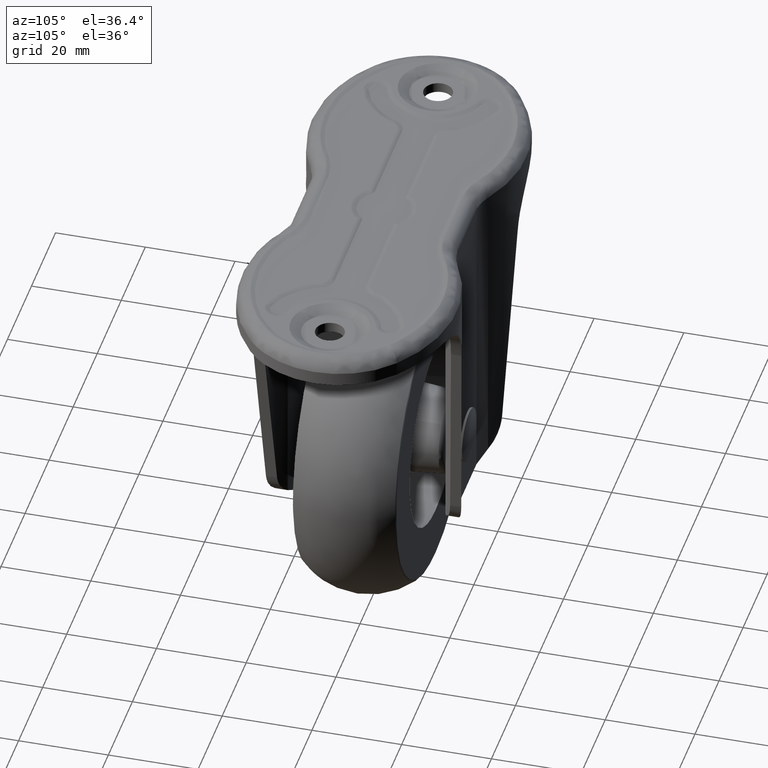
[diagram: clean part render]
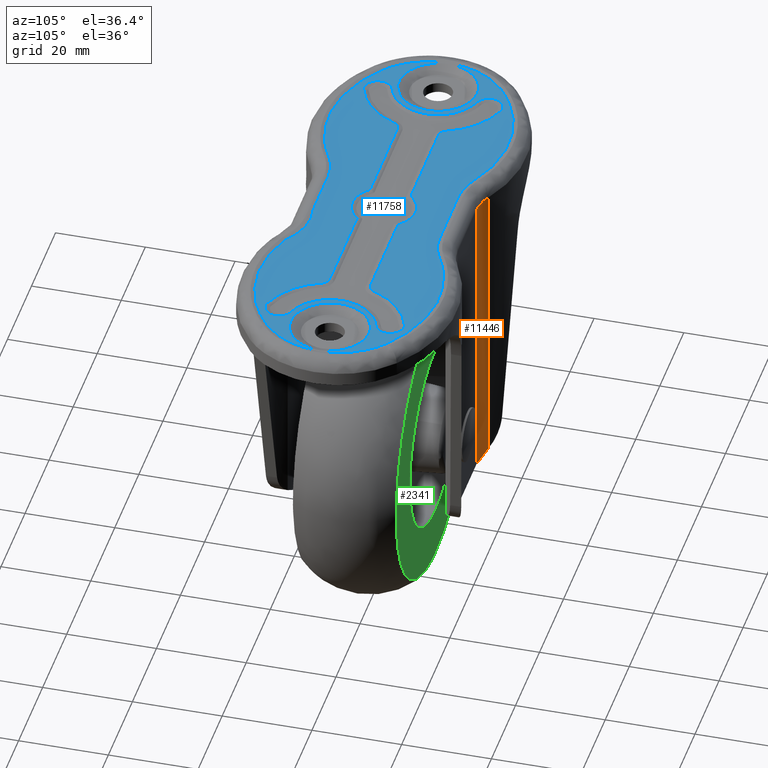
[diagram: same view with three faces highlighted in distinct colors, each labeled with its STEP entity id]
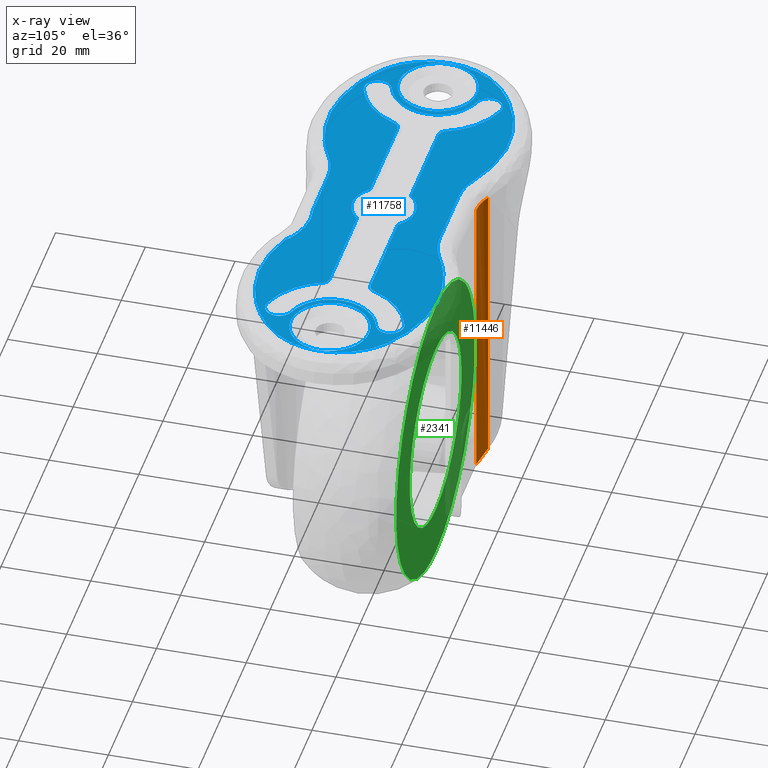
[diagram: x-ray of the same camera — body ghosted, the three highlighted faces saturated]
A machine part, auxiliary view with three faces highlighted in distinct colors.
The next image is the same camera in x-ray (body ghosted, the three faces saturated) — at least one of them is partly hidden behind the body in this view.
Their STEP definitions:

[orange] entity #11446 — the highlighted face is a freeform B-spline surface patch.
#4761=CARTESIAN_POINT('',(-12.713297699008381,19.766056510842500,-3.0));
#4762=VERTEX_POINT('',#4761);
#4895=CARTESIAN_POINT('',(-7.843161000000090,18.500000000000000,-3.0));
#4896=VERTEX_POINT('',#4895);
#4910=CARTESIAN_POINT('',(-12.713297699008381,19.766056510842500,-3.0));
#4911=CARTESIAN_POINT('',(-10.442793425187485,18.500000000000004,-3.000000000000000));
#4912=CARTESIAN_POINT('',(-7.843161000000100,18.500000000000000,-3.0));
#4920=(BOUNDED_CURVE()B_SPLINE_CURVE(2,(#4910,#4911,#4912),.UNSPECIFIED.,.F.,.U.)CURVE()GEOMETRIC_REPRESENTATION_ITEM()QUASI_UNIFORM_CURVE()RATIONAL_B_SPLINE_CURVE((1.0,0.967831170048814,1.0))REPRESENTATION_ITEM(''));
#4921=EDGE_CURVE('',#4762,#4896,#4920,.T.);
#9979=CARTESIAN_POINT('',(-12.713297699008381,19.766056510842500,-70.109765898351696));
#9980=VERTEX_POINT('',#9979);
#9981=CARTESIAN_POINT('',(-9.045706000000001,18.572569037108551,-71.0));
#9982=VERTEX_POINT('',#9981);
#9983=CARTESIAN_POINT('',(-12.713297699008381,19.766056510842500,-70.109765898351696));
#9984=CARTESIAN_POINT('',(-12.445518581591321,19.616740140846769,-70.247900469791873));
#9985=CARTESIAN_POINT('',(-12.168256211024110,19.478235421953549,-70.371847800666657));
#9986=CARTESIAN_POINT('',(-11.593465459385380,19.224553857197410,-70.589689160543543));
#9987=CARTESIAN_POINT('',(-11.295948344607339,19.109363912130348,-70.683599741285065));
#9988=CARTESIAN_POINT('',(-10.910004610241950,18.981539939061250,-70.780149205925213));
#9989=CARTESIAN_POINT('',(-10.832110684249001,18.956786005243170,-70.798412337656700));
#9990=CARTESIAN_POINT('',(-10.674865174651380,18.908951828295478,-70.832771991298600));
#9991=CARTESIAN_POINT('',(-10.595383879958300,18.885837832376371,-70.848890153523072));
#9992=CARTESIAN_POINT('',(-10.356208758398459,18.819505651603681,-70.893598369250995));
#9993=CARTESIAN_POINT('',(-10.195487540058499,18.779190893338320,-70.918627149203090));
#9994=CARTESIAN_POINT('',(-9.709458099586904,18.670085733183999,-70.979100652461838));
#9995=CARTESIAN_POINT('',(-9.380297952692690,18.613099349659230,-71.000000000000014));
#9996=CARTESIAN_POINT('',(-9.045706000000003,18.572569037108600,-71.0));
#9997=B_SPLINE_CURVE_WITH_KNOTS('',3,(#9983,#9984,#9985,#9986,#9987,#9988,#9989,#9990,#9991,#9992,#9993,#9994,#9995,#9996),.UNSPECIFIED.,.F.,.U.,(4,2,2,2,2,2,4),(0.0,0.249999999999998,0.499999999999996,0.562499999999995,0.624999999999995,0.749999999999996,1.0),.UNSPECIFIED.);
#9998=EDGE_CURVE('',#9980,#9982,#9997,.T.);
#10941=CARTESIAN_POINT('',(-7.843161000000090,18.500000000000000,-71.0));
#10942=VERTEX_POINT('',#10941);
#10943=CARTESIAN_POINT('',(-7.843161000000090,18.500000000000000,-3.0));
#10944=CARTESIAN_POINT('',(-7.843161000000090,18.500000000000000,-71.0));
#10945=QUASI_UNIFORM_CURVE('',1,(#10943,#10944),.UNSPECIFIED.,.F.,.U.);
#10946=EDGE_CURVE('',#4896,#10942,#10945,.T.);
#11401=CARTESIAN_POINT('',(-12.713297699008381,19.766056510842500,-3.0));
#11402=CARTESIAN_POINT('',(-12.713297699008381,19.766056510842500,-70.109765898351696));
#11403=QUASI_UNIFORM_CURVE('',1,(#11401,#11402),.UNSPECIFIED.,.F.,.U.);
#11404=EDGE_CURVE('',#4762,#9980,#11403,.T.);
#11413=CARTESIAN_POINT('',(-12.930363353194933,19.890681082823740,-1.299999999999997));
#11414=CARTESIAN_POINT('',(-12.930363353194933,19.890681082823740,-72.742500000000007));
#11415=CARTESIAN_POINT('',(-10.460057105273071,18.430989801964358,-1.299999999999997));
#11416=CARTESIAN_POINT('',(-10.460057105273071,18.430989801964358,-72.742500000000035));
#11417=CARTESIAN_POINT('',(-7.591625046364865,18.503164017348844,-1.299999999999997));
#11418=CARTESIAN_POINT('',(-7.591625046364865,18.503164017348844,-72.742500000000021));
#11426=(BOUNDED_SURFACE()B_SPLINE_SURFACE(1,2,((#11413,#11415,#11417),(#11414,#11416,#11418)),.UNSPECIFIED.,.F.,.F.,.U.)B_SPLINE_SURFACE_WITH_KNOTS((2,2),(3,3),(0.0,71.442500000000038),(0.0,5.625177772246517),.UNSPECIFIED.)GEOMETRIC_REPRESENTATION_ITEM()RATIONAL_B_SPLINE_SURFACE(((0.997522300435738,0.956320329635517,0.992303006185731),(0.997522300435738,0.956320329635517,0.992303006185731)))REPRESENTATION_ITEM('')SURFACE());
#11427=ORIENTED_EDGE('',*,*,#11404,.F.);
#11428=ORIENTED_EDGE('',*,*,#4921,.T.);
#11429=ORIENTED_EDGE('',*,*,#10946,.T.);
#11430=CARTESIAN_POINT('',(-7.843161000000100,18.500000000000000,-71.0));
#11431=CARTESIAN_POINT('',(-8.446623133297285,18.499999999999996,-71.0));
#11432=CARTESIAN_POINT('',(-9.045705999999997,18.572569037108579,-71.0));
#11440=(BOUNDED_CURVE()B_SPLINE_CURVE(2,(#11430,#11431,#11432),.UNSPECIFIED.,.F.,.U.)CURVE()GEOMETRIC_REPRESENTATION_ITEM()QUASI_UNIFORM_CURVE()RATIONAL_B_SPLINE_CURVE((1.0,0.998184125371953,1.0))REPRESENTATION_ITEM(''));
#11441=EDGE_CURVE('',#10942,#9982,#11440,.T.);
#11442=ORIENTED_EDGE('',*,*,#11441,.T.);
#11443=ORIENTED_EDGE('',*,*,#9998,.F.);
#11444=EDGE_LOOP('',(#11427,#11428,#11429,#11442,#11443));
#11445=FACE_OUTER_BOUND('',#11444,.T.);
#11446=ADVANCED_FACE('',(#11445),#11426,.F.);

[blue] entity #11758 — the highlighted face is a freeform B-spline surface patch.
#3687=CARTESIAN_POINT('',(37.755674284288567,4.856980816941231,-0.200000000000001));
#3688=VERTEX_POINT('',#3687);
#3702=CARTESIAN_POINT('',(36.278158581138378,0.0,-0.200000000000000));
#3703=VERTEX_POINT('',#3702);
#3704=CARTESIAN_POINT('',(36.278158581138378,0.0,-0.200000000000000));
#3705=CARTESIAN_POINT('',(36.278158581138378,2.653223914282025,-0.200000000000000));
#3706=CARTESIAN_POINT('',(37.755674284288574,4.856980816941232,-0.200000000000001));
#3714=(BOUNDED_CURVE()B_SPLINE_CURVE(2,(#3704,#3705,#3706),.UNSPECIFIED.,.F.,.U.)B_SPLINE_CURVE_WITH_KNOTS((3,3),(0.0,0.095516885358171),.UNSPECIFIED.)CURVE()GEOMETRIC_REPRESENTATION_ITEM()RATIONAL_B_SPLINE_CURVE((1.0,0.888095007985639,0.861700546317220))REPRESENTATION_ITEM(''));
#3715=EDGE_CURVE('',#3703,#3688,#3714,.T.);
#3717=CARTESIAN_POINT('',(53.721841418861622,0.0,-0.200000000000000));
#3718=VERTEX_POINT('',#3717);
#3719=CARTESIAN_POINT('',(53.721841418861622,0.0,-0.200000000000000));
#3720=CARTESIAN_POINT('',(53.721841418861615,-8.721841418861621,-0.200000000000000));
#3721=CARTESIAN_POINT('',(45.0,-8.721841418861621,-0.200000000000000));
#3722=CARTESIAN_POINT('',(36.278158581138378,-8.721841418861621,-0.200000000000000));
#3723=CARTESIAN_POINT('',(36.278158581138378,0.0,-0.200000000000000));
#3731=(BOUNDED_CURVE()B_SPLINE_CURVE(2,(#3719,#3720,#3721,#3722,#3723),.UNSPECIFIED.,.F.,.U.)B_SPLINE_CURVE_WITH_KNOTS((3,2,3),(0.500000000000000,0.750000000000000,1.0),.UNSPECIFIED.)CURVE()GEOMETRIC_REPRESENTATION_ITEM()RATIONAL_B_SPLINE_CURVE((1.0,0.707106781186548,1.0,0.707106781186548,1.0))REPRESENTATION_ITEM(''));
#3732=EDGE_CURVE('',#3718,#3703,#3731,.T.);
#3734=CARTESIAN_POINT('',(50.660956057766242,6.635065498112169,-0.200000000000001));
#3735=VERTEX_POINT('',#3734);
#3736=CARTESIAN_POINT('',(50.660956057766242,6.635065498112170,-0.200000000000001));
#3737=CARTESIAN_POINT('',(53.721841418861615,4.023555861763839,-0.200000000000000));
#3738=CARTESIAN_POINT('',(53.721841418861622,0.0,-0.200000000000000));
#3746=(BOUNDED_CURVE()B_SPLINE_CURVE(2,(#3736,#3737,#3738),.UNSPECIFIED.,.F.,.U.)B_SPLINE_CURVE_WITH_KNOTS((3,3),(0.363065093423802,0.500000000000000),.UNSPECIFIED.)CURVE()GEOMETRIC_REPRESENTATION_ITEM()RATIONAL_B_SPLINE_CURVE((0.854888440014223,0.839570777779912,1.0))REPRESENTATION_ITEM(''));
#3747=EDGE_CURVE('',#3735,#3718,#3746,.T.);
#3804=CARTESIAN_POINT('',(37.755674284288574,4.856980816941231,-0.200000000000001));
#3805=CARTESIAN_POINT('',(40.346882153507316,8.721841418861621,-0.200000000000000));
#3806=CARTESIAN_POINT('',(45.0,8.721841418861621,-0.200000000000000));
#3807=CARTESIAN_POINT('',(48.215098020665522,8.721841418861621,-0.200000000000000));
#3808=CARTESIAN_POINT('',(50.660956057766242,6.635065498112170,-0.200000000000001));
#3816=(BOUNDED_CURVE()B_SPLINE_CURVE(2,(#3804,#3805,#3806,#3807,#3808),.UNSPECIFIED.,.F.,.U.)B_SPLINE_CURVE_WITH_KNOTS((3,2,3),(0.095516885358171,0.250000000000000,0.363065093423802),.UNSPECIFIED.)CURVE()GEOMETRIC_REPRESENTATION_ITEM()RATIONAL_B_SPLINE_CURVE((0.861700546317220,0.819011773200909,1.0,0.867536003406636,0.854888440014223))REPRESENTATION_ITEM(''));
#3817=EDGE_CURVE('',#3688,#3735,#3816,.T.);
#3901=CARTESIAN_POINT('',(-52.244325715711433,4.856980816941229,-0.200000000000001));
#3902=VERTEX_POINT('',#3901);
#3916=CARTESIAN_POINT('',(-53.721841418861622,0.0,-0.200000000000000));
#3917=VERTEX_POINT('',#3916);
#3918=CARTESIAN_POINT('',(-53.721841418861622,0.0,-0.200000000000000));
#3919=CARTESIAN_POINT('',(-53.721841418861615,2.653223914282022,-0.200000000000000));
#3920=CARTESIAN_POINT('',(-52.244325715711426,4.856980816941229,-0.200000000000001));
#3928=(BOUNDED_CURVE()B_SPLINE_CURVE(2,(#3918,#3919,#3920),.UNSPECIFIED.,.F.,.U.)B_SPLINE_CURVE_WITH_KNOTS((3,3),(0.0,0.095516885358171),.UNSPECIFIED.)CURVE()GEOMETRIC_REPRESENTATION_ITEM()RATIONAL_B_SPLINE_CURVE((1.0,0.888095007985639,0.861700546317220))REPRESENTATION_ITEM(''));
#3929=EDGE_CURVE('',#3917,#3902,#3928,.T.);
#3931=CARTESIAN_POINT('',(-36.278158581138378,0.0,-0.200000000000000));
#3932=VERTEX_POINT('',#3931);
#3933=CARTESIAN_POINT('',(-36.278158581138378,0.0,-0.200000000000000));
#3934=CARTESIAN_POINT('',(-36.278158581138378,-8.721841418861621,-0.200000000000000));
#3935=CARTESIAN_POINT('',(-45.0,-8.721841418861621,-0.200000000000000));
#3936=CARTESIAN_POINT('',(-53.721841418861615,-8.721841418861621,-0.200000000000000));
#3937=CARTESIAN_POINT('',(-53.721841418861622,0.0,-0.200000000000000));
#3945=(BOUNDED_CURVE()B_SPLINE_CURVE(2,(#3933,#3934,#3935,#3936,#3937),.UNSPECIFIED.,.F.,.U.)B_SPLINE_CURVE_WITH_KNOTS((3,2,3),(0.500000000000000,0.750000000000000,1.0),.UNSPECIFIED.)CURVE()GEOMETRIC_REPRESENTATION_ITEM()RATIONAL_B_SPLINE_CURVE((1.0,0.707106781186548,1.0,0.707106781186548,1.0))REPRESENTATION_ITEM(''));
#3946=EDGE_CURVE('',#3932,#3917,#3945,.T.);
#3948=CARTESIAN_POINT('',(-39.339043942233772,6.635065498112180,-0.200000000000001));
#3949=VERTEX_POINT('',#3948);
#3950=CARTESIAN_POINT('',(-39.339043942233765,6.635065498112180,-0.200000000000001));
#3951=CARTESIAN_POINT('',(-36.278158581138385,4.023555861763851,-0.200000000000000));
#3952=CARTESIAN_POINT('',(-36.278158581138378,0.0,-0.200000000000000));
#3960=(BOUNDED_CURVE()B_SPLINE_CURVE(2,(#3950,#3951,#3952),.UNSPECIFIED.,.F.,.U.)B_SPLINE_CURVE_WITH_KNOTS((3,3),(0.363065093423802,0.500000000000000),.UNSPECIFIED.)CURVE()GEOMETRIC_REPRESENTATION_ITEM()RATIONAL_B_SPLINE_CURVE((0.854888440014223,0.839570777779912,1.0))REPRESENTATION_ITEM(''));
#3961=EDGE_CURVE('',#3949,#3932,#3960,.T.);
#4018=CARTESIAN_POINT('',(-52.244325715711426,4.856980816941229,-0.200000000000001));
#4019=CARTESIAN_POINT('',(-49.653117846492684,8.721841418861621,-0.200000000000000));
#4020=CARTESIAN_POINT('',(-45.0,8.721841418861621,-0.200000000000000));
#4021=CARTESIAN_POINT('',(-41.784901979334492,8.721841418861621,-0.200000000000000));
#4022=CARTESIAN_POINT('',(-39.339043942233765,6.635065498112180,-0.200000000000001));
#4030=(BOUNDED_CURVE()B_SPLINE_CURVE(2,(#4018,#4019,#4020,#4021,#4022),.UNSPECIFIED.,.F.,.U.)B_SPLINE_CURVE_WITH_KNOTS((3,2,3),(0.095516885358171,0.250000000000000,0.363065093423802),.UNSPECIFIED.)CURVE()GEOMETRIC_REPRESENTATION_ITEM()RATIONAL_B_SPLINE_CURVE((0.861700546317220,0.819011773200909,1.0,0.867536003406636,0.854888440014223))REPRESENTATION_ITEM(''));
#4031=EDGE_CURVE('',#3902,#3949,#4030,.T.);
#5188=CARTESIAN_POINT('',(17.071346206458848,-17.475252960349351,-0.199999999999978));
#5189=VERTEX_POINT('',#5188);
#5203=CARTESIAN_POINT('',(4.571395499081909,-14.500000000000000,-0.200000000000000));
#5204=VERTEX_POINT('',#5203);
#5205=CARTESIAN_POINT('',(4.571395499081909,-14.500000000000000,-0.200000000000000));
#5206=CARTESIAN_POINT('',(11.564445603684280,-12.865741422969467,-0.200000000000000));
#5207=CARTESIAN_POINT('',(17.071346206458870,-17.475252960349330,-0.200000000000000));
#5215=(BOUNDED_CURVE()B_SPLINE_CURVE(2,(#5205,#5206,#5207),.UNSPECIFIED.,.F.,.U.)CURVE()GEOMETRIC_REPRESENTATION_ITEM()QUASI_UNIFORM_CURVE()RATIONAL_B_SPLINE_CURVE((1.0,0.894604760710094,1.0))REPRESENTATION_ITEM(''));
#5216=EDGE_CURVE('',#5204,#5189,#5215,.T.);
#5268=CARTESIAN_POINT('',(-30.029684640260449,5.797120781935690,-0.200000000000000));
#5269=VERTEX_POINT('',#5268);
#5283=CARTESIAN_POINT('',(-40.060441466529397,15.274741331786050,-0.200000000000000));
#5284=VERTEX_POINT('',#5283);
#5285=CARTESIAN_POINT('',(-40.060441466529390,15.274741331786069,-0.200000000000000));
#5286=CARTESIAN_POINT('',(-32.789265400122325,12.923382378659458,-0.200000000000000));
#5287=CARTESIAN_POINT('',(-30.029684640260449,5.797120781935690,-0.200000000000000));
#5295=(BOUNDED_CURVE()B_SPLINE_CURVE(2,(#5285,#5286,#5287),.UNSPECIFIED.,.F.,.U.)CURVE()GEOMETRIC_REPRESENTATION_ITEM()QUASI_UNIFORM_CURVE()RATIONAL_B_SPLINE_CURVE((1.0,0.902918110266185,1.0))REPRESENTATION_ITEM(''));
#5296=EDGE_CURVE('',#5284,#5269,#5295,.T.);
#5352=CARTESIAN_POINT('',(-41.939558560842201,9.463892553918281,-0.200000000000000));
#5353=VERTEX_POINT('',#5352);
#5387=CARTESIAN_POINT('',(-41.939558560842201,9.463892553918281,-0.200000000000000));
#5388=CARTESIAN_POINT('',(-43.617006148826761,10.006346942563813,-0.200000000000000));
#5389=CARTESIAN_POINT('',(-43.985950660140603,11.730286361965620,-0.200000000000000));
#5390=CARTESIAN_POINT('',(-44.354895171454437,13.454225781367422,-0.200000000000000));
#5391=CARTESIAN_POINT('',(-43.046392094147222,14.635710809149661,-0.200000000000000));
#5392=CARTESIAN_POINT('',(-41.737889016840001,15.817195836931889,-0.200000000000000));
#5393=CARTESIAN_POINT('',(-40.060441466529397,15.274741331786050,-0.200000000000000));
#5401=(BOUNDED_CURVE()B_SPLINE_CURVE(2,(#5387,#5388,#5389,#5390,#5391,#5392,#5393),.UNSPECIFIED.,.F.,.U.)B_SPLINE_CURVE_WITH_KNOTS((3,2,2,3),(0.0,0.333333333333333,0.666666666666667,1.0),.UNSPECIFIED.)CURVE()GEOMETRIC_REPRESENTATION_ITEM()RATIONAL_B_SPLINE_CURVE((1.0,0.866025403535436,1.0,0.866025403535436,1.0,0.866025403535436,1.0))REPRESENTATION_ITEM(''));
#5402=EDGE_CURVE('',#5353,#5284,#5401,.T.);
#5442=CARTESIAN_POINT('',(-28.214590000000001,4.553565375284960,-0.200000000000000));
#5443=VERTEX_POINT('',#5442);
#5457=CARTESIAN_POINT('',(-30.029684640260481,5.797120781935679,-0.200000000000000));
#5458=CARTESIAN_POINT('',(-29.548128895199934,4.553565375284955,-0.200000000000000));
#5459=CARTESIAN_POINT('',(-28.214590000000001,4.553565375284955,-0.200000000000000));
#5467=(BOUNDED_CURVE()B_SPLINE_CURVE(2,(#5457,#5458,#5459),.UNSPECIFIED.,.F.,.U.)CURVE()GEOMETRIC_REPRESENTATION_ITEM()QUASI_UNIFORM_CURVE()RATIONAL_B_SPLINE_CURVE((1.0,0.824957918861946,1.0))REPRESENTATION_ITEM(''));
#5468=EDGE_CURVE('',#5269,#5443,#5467,.T.);
#5510=CARTESIAN_POINT('',(-41.939558605424601,-9.463892445188460,-0.200000000000000));
#5511=VERTEX_POINT('',#5510);
#5543=CARTESIAN_POINT('',(-41.939558605424587,-9.463892445188460,-0.200000000000000));
#5544=CARTESIAN_POINT('',(-35.053565378546381,-7.237094239655360,-0.200000000000000));
#5545=CARTESIAN_POINT('',(-35.053565375285181,-4.482099E-009,-0.200000000000000));
#5546=CARTESIAN_POINT('',(-35.053565372023982,7.237094230691161,-0.200000000000000));
#5547=CARTESIAN_POINT('',(-41.939558560842201,9.463892553918281,-0.200000000000000));
#5555=(BOUNDED_CURVE()B_SPLINE_CURVE(2,(#5543,#5544,#5545,#5546,#5547),.UNSPECIFIED.,.F.,.U.)B_SPLINE_CURVE_WITH_KNOTS((3,2,3),(0.0,0.500000000000000,1.0),.UNSPECIFIED.)CURVE()GEOMETRIC_REPRESENTATION_ITEM()RATIONAL_B_SPLINE_CURVE((1.0,0.808607539311992,1.0,0.808607539311992,1.0))REPRESENTATION_ITEM(''));
#5556=EDGE_CURVE('',#5511,#5353,#5555,.T.);
#5577=CARTESIAN_POINT('',(-5.386819736767320,4.553565375285190,-0.200000000000000));
#5578=VERTEX_POINT('',#5577);
#5597=CARTESIAN_POINT('',(-28.214590000000001,4.553565375284960,-0.200000000000000));
#5598=CARTESIAN_POINT('',(-5.386819736767320,4.553565375285190,-0.200000000000000));
#5599=QUASI_UNIFORM_CURVE('',1,(#5597,#5598),.UNSPECIFIED.,.F.,.U.);
#5600=EDGE_CURVE('',#5443,#5578,#5599,.T.);
#5634=CARTESIAN_POINT('',(-40.060441420957453,-15.274741440196051,-0.200000000000000));
#5635=VERTEX_POINT('',#5634);
#5669=CARTESIAN_POINT('',(-40.060441420957453,-15.274741440196051,-0.200000000000000));
#5670=CARTESIAN_POINT('',(-41.737889005763854,-15.817195839420689,-0.200000000000000));
#5671=CARTESIAN_POINT('',(-43.046392086979289,-14.635710815621961,-0.200000000000000));
#5672=CARTESIAN_POINT('',(-44.354895168194730,-13.454225791823250,-0.200000000000000));
#5673=CARTESIAN_POINT('',(-43.985950662089110,-11.730286371070459,-0.200000000000000));
#5674=CARTESIAN_POINT('',(-43.617006155983482,-10.006346950317672,-0.200000000000000));
#5675=CARTESIAN_POINT('',(-41.939558605424601,-9.463892445188460,-0.200000000000000));
#5683=(BOUNDED_CURVE()B_SPLINE_CURVE(2,(#5669,#5670,#5671,#5672,#5673,#5674,#5675),.UNSPECIFIED.,.F.,.U.)B_SPLINE_CURVE_WITH_KNOTS((3,2,2,3),(0.0,0.333333333333333,0.666666666666667,1.0),.UNSPECIFIED.)CURVE()GEOMETRIC_REPRESENTATION_ITEM()RATIONAL_B_SPLINE_CURVE((1.0,0.866025403507052,1.0,0.866025403507052,1.0,0.866025403507052,1.0))REPRESENTATION_ITEM(''));
#5684=EDGE_CURVE('',#5635,#5511,#5683,.T.);
#5708=CARTESIAN_POINT('',(5.386819736767320,4.553565375285190,-0.200000000000000));
#5709=VERTEX_POINT('',#5708);
#5728=CARTESIAN_POINT('',(-5.386819736767321,4.553565375285191,-0.200000000000000));
#5729=CARTESIAN_POINT('',(-3.273529522039519,7.053565375285190,-0.200000000000000));
#5730=CARTESIAN_POINT('',(0.0,7.053565375285190,-0.200000000000000));
#5731=CARTESIAN_POINT('',(3.273529522039519,7.053565375285190,-0.200000000000000));
#5732=CARTESIAN_POINT('',(5.386819736767321,4.553565375285190,-0.200000000000000));
#5740=(BOUNDED_CURVE()B_SPLINE_CURVE(2,(#5728,#5729,#5730,#5731,#5732),.UNSPECIFIED.,.F.,.U.)B_SPLINE_CURVE_WITH_KNOTS((3,2,3),(0.0,0.500000000000000,1.0),.UNSPECIFIED.)CURVE()GEOMETRIC_REPRESENTATION_ITEM()RATIONAL_B_SPLINE_CURVE((1.0,0.907074780843678,1.0,0.907074780843678,1.0))REPRESENTATION_ITEM(''));
#5741=EDGE_CURVE('',#5578,#5709,#5740,.T.);
#5779=CARTESIAN_POINT('',(-30.029684656967699,-5.797120825080160,-0.200000000000000));
#5780=VERTEX_POINT('',#5779);
#5810=CARTESIAN_POINT('',(-30.029684656967699,-5.797120825080160,-0.200000000000000));
#5811=CARTESIAN_POINT('',(-32.789265424905309,-12.923382381668741,-0.200000000000000));
#5812=CARTESIAN_POINT('',(-40.060441420957453,-15.274741440196051,-0.200000000000000));
#5820=(BOUNDED_CURVE()B_SPLINE_CURVE(2,(#5810,#5811,#5812),.UNSPECIFIED.,.F.,.U.)CURVE()GEOMETRIC_REPRESENTATION_ITEM()QUASI_UNIFORM_CURVE()RATIONAL_B_SPLINE_CURVE((1.0,0.902918111019469,1.0))REPRESENTATION_ITEM(''));
#5821=EDGE_CURVE('',#5780,#5635,#5820,.T.);
#5842=CARTESIAN_POINT('',(28.214590000000001,4.553565375285190,-0.200000000000000));
#5843=VERTEX_POINT('',#5842);
#5857=CARTESIAN_POINT('',(5.386819736767320,4.553565375285190,-0.200000000000000));
#5858=CARTESIAN_POINT('',(28.214590000000001,4.553565375285190,-0.200000000000000));
#5859=QUASI_UNIFORM_CURVE('',1,(#5857,#5858),.UNSPECIFIED.,.F.,.U.);
#5860=EDGE_CURVE('',#5709,#5843,#5859,.T.);
#5904=CARTESIAN_POINT('',(-28.214590000000001,-4.553565375285190,-0.200000000000000));
#5905=VERTEX_POINT('',#5904);
#5935=CARTESIAN_POINT('',(-28.214590000000001,-4.553565375285185,-0.200000000000000));
#5936=CARTESIAN_POINT('',(-29.548128929191407,-4.553565375285185,-0.200000000000000));
#5937=CARTESIAN_POINT('',(-30.029684656967699,-5.797120825080159,-0.200000000000000));
#5945=(BOUNDED_CURVE()B_SPLINE_CURVE(2,(#5935,#5936,#5937),.UNSPECIFIED.,.F.,.U.)CURVE()GEOMETRIC_REPRESENTATION_ITEM()QUASI_UNIFORM_CURVE()RATIONAL_B_SPLINE_CURVE((1.0,0.824957912144699,1.0))REPRESENTATION_ITEM(''));
#5946=EDGE_CURVE('',#5905,#5780,#5945,.T.);
#5986=CARTESIAN_POINT('',(30.029684656967699,5.797120825079931,-0.200000000000000));
#5987=VERTEX_POINT('',#5986);
#6001=CARTESIAN_POINT('',(28.214590000000001,4.553565375285190,-0.200000000000000));
#6002=CARTESIAN_POINT('',(29.548128929191396,4.553565375284954,-0.200000000000000));
#6003=CARTESIAN_POINT('',(30.029684656967699,5.797120825079929,-0.200000000000000));
#6011=(BOUNDED_CURVE()B_SPLINE_CURVE(2,(#6001,#6002,#6003),.UNSPECIFIED.,.F.,.U.)CURVE()GEOMETRIC_REPRESENTATION_ITEM()QUASI_UNIFORM_CURVE()RATIONAL_B_SPLINE_CURVE((1.0,0.824957912144699,1.0))REPRESENTATION_ITEM(''));
#6012=EDGE_CURVE('',#5843,#5987,#6011,.T.);
#6045=CARTESIAN_POINT('',(-5.386819736767320,-4.553565375285190,-0.200000000000000));
#6046=VERTEX_POINT('',#6045);
#6073=CARTESIAN_POINT('',(-5.386819736767320,-4.553565375285190,-0.200000000000000));
#6074=CARTESIAN_POINT('',(-28.214590000000001,-4.553565375285190,-0.200000000000000));
#6075=QUASI_UNIFORM_CURVE('',1,(#6073,#6074),.UNSPECIFIED.,.F.,.U.);
#6076=EDGE_CURVE('',#6046,#5905,#6075,.T.);
#6100=CARTESIAN_POINT('',(40.060441460150450,15.274741329723200,-0.200000000000000));
#6101=VERTEX_POINT('',#6100);
#6115=CARTESIAN_POINT('',(30.029684656967699,5.797120825079931,-0.200000000000000));
#6116=CARTESIAN_POINT('',(32.789265425636017,12.923382383555998,-0.200000000000000));
#6117=CARTESIAN_POINT('',(40.060441460150443,15.274741329723231,-0.200000000000000));
#6125=(BOUNDED_CURVE()B_SPLINE_CURVE(2,(#6115,#6116,#6117),.UNSPECIFIED.,.F.,.U.)CURVE()GEOMETRIC_REPRESENTATION_ITEM()QUASI_UNIFORM_CURVE()RATIONAL_B_SPLINE_CURVE((1.0,0.902918110975290,1.0))REPRESENTATION_ITEM(''));
#6126=EDGE_CURVE('',#5987,#6101,#6125,.T.);
#6162=CARTESIAN_POINT('',(5.386819736767320,-4.553565375285190,-0.200000000000000));
#6163=VERTEX_POINT('',#6162);
#6200=CARTESIAN_POINT('',(5.386819736767323,-4.553565375285189,-0.200000000000000));
#6201=CARTESIAN_POINT('',(3.273529522039521,-7.053565375285190,-0.200000000000000));
#6202=CARTESIAN_POINT('',(0.0,-7.053565375285190,-0.200000000000000));
#6203=CARTESIAN_POINT('',(-3.273529522039516,-7.053565375285190,-0.200000000000000));
#6204=CARTESIAN_POINT('',(-5.386819736767318,-4.553565375285192,-0.200000000000000));
#6212=(BOUNDED_CURVE()B_SPLINE_CURVE(2,(#6200,#6201,#6202,#6203,#6204),.UNSPECIFIED.,.F.,.U.)B_SPLINE_CURVE_WITH_KNOTS((3,2,3),(0.0,0.500000000000000,1.0),.UNSPECIFIED.)CURVE()GEOMETRIC_REPRESENTATION_ITEM()RATIONAL_B_SPLINE_CURVE((1.0,0.907074780843677,1.0,0.907074780843677,1.0))REPRESENTATION_ITEM(''));
#6213=EDGE_CURVE('',#6163,#6046,#6212,.T.);
#6243=CARTESIAN_POINT('',(41.939558569942349,9.463892556861101,-0.200000000000000));
#6244=VERTEX_POINT('',#6243);
#6258=CARTESIAN_POINT('',(40.060441460150450,15.274741329723200,-0.200000000000000));
#6259=CARTESIAN_POINT('',(41.737889008665356,15.817195838356396,-0.200000000000000));
#6260=CARTESIAN_POINT('',(43.046392088463712,14.635710814281460,-0.200000000000000));
#6261=CARTESIAN_POINT('',(44.354895168262061,13.454225790206523,-0.200000000000000));
#6262=CARTESIAN_POINT('',(43.985950661942617,11.730286370385780,-0.200000000000000));
#6263=CARTESIAN_POINT('',(43.617006155623173,10.006346950565053,-0.200000000000000));
#6264=CARTESIAN_POINT('',(41.939558569942349,9.463892556861095,-0.200000000000000));
#6272=(BOUNDED_CURVE()B_SPLINE_CURVE(2,(#6258,#6259,#6260,#6261,#6262,#6263,#6264),.UNSPECIFIED.,.F.,.U.)B_SPLINE_CURVE_WITH_KNOTS((3,2,2,3),(0.0,0.333333333333333,0.666666666666667,1.0),.UNSPECIFIED.)CURVE()GEOMETRIC_REPRESENTATION_ITEM()RATIONAL_B_SPLINE_CURVE((1.0,0.866025403613485,1.0,0.866025403613485,1.0,0.866025403613485,1.0))REPRESENTATION_ITEM(''));
#6273=EDGE_CURVE('',#6101,#6244,#6272,.T.);
#6310=CARTESIAN_POINT('',(28.214590000000001,-4.553565375285190,-0.200000000000000));
#6311=VERTEX_POINT('',#6310);
#6333=CARTESIAN_POINT('',(28.214590000000001,-4.553565375285190,-0.200000000000000));
#6334=CARTESIAN_POINT('',(5.386819736767320,-4.553565375285190,-0.200000000000000));
#6335=QUASI_UNIFORM_CURVE('',1,(#6333,#6334),.UNSPECIFIED.,.F.,.U.);
#6336=EDGE_CURVE('',#6311,#6163,#6335,.T.);
#6366=CARTESIAN_POINT('',(41.939558600035099,-9.463892443445589,-0.200000000000000));
#6367=VERTEX_POINT('',#6366);
#6381=CARTESIAN_POINT('',(41.939558569942349,9.463892556861101,-0.200000000000000));
#6382=CARTESIAN_POINT('',(35.053565377564141,7.237094239796514,-0.200000000000000));
#6383=CARTESIAN_POINT('',(35.053565375285181,3.132136E-009,-0.200000000000000));
#6384=CARTESIAN_POINT('',(35.053565373006208,-7.237094233532249,-0.200000000000000));
#6385=CARTESIAN_POINT('',(41.939558600035092,-9.463892443445598,-0.200000000000000));
#6393=(BOUNDED_CURVE()B_SPLINE_CURVE(2,(#6381,#6382,#6383,#6384,#6385),.UNSPECIFIED.,.F.,.U.)B_SPLINE_CURVE_WITH_KNOTS((3,2,3),(0.0,0.500000000000000,1.0),.UNSPECIFIED.)CURVE()GEOMETRIC_REPRESENTATION_ITEM()RATIONAL_B_SPLINE_CURVE((1.0,0.808607539254322,1.0,0.808607539254322,1.0))REPRESENTATION_ITEM(''));
#6394=EDGE_CURVE('',#6244,#6367,#6393,.T.);
#6448=CARTESIAN_POINT('',(30.029684342862950,-5.797120870245171,-0.200000000000000));
#6449=VERTEX_POINT('',#6448);
#6479=CARTESIAN_POINT('',(30.029684342862950,-5.797120870245171,-0.200000000000000));
#6480=CARTESIAN_POINT('',(29.548128876800885,-4.553565375285185,-0.200000000000000));
#6481=CARTESIAN_POINT('',(28.214590000000001,-4.553565375285185,-0.200000000000000));
#6489=(BOUNDED_CURVE()B_SPLINE_CURVE(2,(#6479,#6480,#6481),.UNSPECIFIED.,.F.,.U.)CURVE()GEOMETRIC_REPRESENTATION_ITEM()QUASI_UNIFORM_CURVE()RATIONAL_B_SPLINE_CURVE((1.0,0.824957922497889,1.0))REPRESENTATION_ITEM(''));
#6490=EDGE_CURVE('',#6449,#6311,#6489,.T.);
#6520=CARTESIAN_POINT('',(40.060441430057651,-15.274741443138900,-0.200000000000000));
#6521=VERTEX_POINT('',#6520);
#6535=CARTESIAN_POINT('',(41.939558600035099,-9.463892443445589,-0.200000000000000));
#6536=CARTESIAN_POINT('',(43.617006150775623,-10.006346945196521,-0.200000000000000));
#6537=CARTESIAN_POINT('',(43.985950660631673,-11.730286364260399,-0.200000000000000));
#6538=CARTESIAN_POINT('',(44.354895170487723,-13.454225783324274,-0.200000000000000));
#6539=CARTESIAN_POINT('',(43.046392093113113,-14.635710810083561,-0.200000000000000));
#6540=CARTESIAN_POINT('',(41.737889015738496,-15.817195836842853,-0.200000000000000));
#6541=CARTESIAN_POINT('',(40.060441430057658,-15.274741443138890,-0.200000000000000));
#6549=(BOUNDED_CURVE()B_SPLINE_CURVE(2,(#6535,#6536,#6537,#6538,#6539,#6540,#6541),.UNSPECIFIED.,.F.,.U.)B_SPLINE_CURVE_WITH_KNOTS((3,2,2,3),(0.0,0.333333333333333,0.666666666666667,1.0),.UNSPECIFIED.)CURVE()GEOMETRIC_REPRESENTATION_ITEM()RATIONAL_B_SPLINE_CURVE((1.0,0.866025403613483,1.0,0.866025403613483,1.0,0.866025403613483,1.0))REPRESENTATION_ITEM(''));
#6550=EDGE_CURVE('',#6367,#6521,#6549,.T.);
#6591=CARTESIAN_POINT('',(40.060441430057651,-15.274741443138900,-0.200000000000000));
#6592=CARTESIAN_POINT('',(32.789265385411170,-12.923382373682060,-0.200000000000000));
#6593=CARTESIAN_POINT('',(30.029684342862922,-5.797120870245188,-0.200000000000000));
#6601=(BOUNDED_CURVE()B_SPLINE_CURVE(2,(#6591,#6592,#6593),.UNSPECIFIED.,.F.,.U.)CURVE()GEOMETRIC_REPRESENTATION_ITEM()QUASI_UNIFORM_CURVE()RATIONAL_B_SPLINE_CURVE((1.0,0.902918109936829,1.0))REPRESENTATION_ITEM(''));
#6602=EDGE_CURVE('',#6521,#6449,#6601,.T.);
#6666=CARTESIAN_POINT('',(-47.771259336567098,13.239952936275120,-0.199999999999978));
#6667=VERTEX_POINT('',#6666);
#6700=CARTESIAN_POINT('',(-47.771258978059599,-13.239953125276040,-0.199999999999978));
#6701=VERTEX_POINT('',#6700);
#6715=CARTESIAN_POINT('',(-47.771259336567077,13.239952936275110,-0.199999999999978));
#6716=CARTESIAN_POINT('',(-54.000000093312273,8.085133043623770,-0.199999999999978));
#6717=CARTESIAN_POINT('',(-54.000000000000092,-0.000000198346508,-0.199999999999978));
#6718=CARTESIAN_POINT('',(-53.999999906687897,-8.085133440316785,-0.199999999999978));
#6719=CARTESIAN_POINT('',(-47.771258978059599,-13.239953125276040,-0.199999999999978));
#6727=(BOUNDED_CURVE()B_SPLINE_CURVE(2,(#6715,#6716,#6717,#6718,#6719),.UNSPECIFIED.,.F.,.U.)B_SPLINE_CURVE_WITH_KNOTS((3,2,3),(0.0,0.500000000000000,1.0),.UNSPECIFIED.)CURVE()GEOMETRIC_REPRESENTATION_ITEM()RATIONAL_B_SPLINE_CURVE((1.0,0.904866758676538,1.0,0.904866758676538,1.0))REPRESENTATION_ITEM(''));
#6728=EDGE_CURVE('',#6667,#6701,#6727,.T.);
#6752=CARTESIAN_POINT('',(-14.661351732813440,-16.272478782231548,-0.199999999999978));
#6753=VERTEX_POINT('',#6752);
#6767=CARTESIAN_POINT('',(-47.771258978059599,-13.239953125276021,-0.199999999999978));
#6768=CARTESIAN_POINT('',(-32.253641181843520,-26.082119467786328,-0.199999999999978));
#6769=CARTESIAN_POINT('',(-14.661351732813440,-16.272478782231548,-0.199999999999978));
#6777=(BOUNDED_CURVE()B_SPLINE_CURVE(2,(#6767,#6768,#6769),.UNSPECIFIED.,.F.,.U.)CURVE()GEOMETRIC_REPRESENTATION_ITEM()QUASI_UNIFORM_CURVE()RATIONAL_B_SPLINE_CURVE((1.0,0.825334444180210,1.0))REPRESENTATION_ITEM(''));
#6778=EDGE_CURVE('',#6701,#6753,#6777,.T.);
#6814=CARTESIAN_POINT('',(-14.661352194097841,16.272479020051499,-0.199999999999978));
#6815=VERTEX_POINT('',#6814);
#6845=CARTESIAN_POINT('',(-14.661352194097841,16.272479020051492,-0.199999999999978));
#6846=CARTESIAN_POINT('',(-32.253641729481409,26.082119366847166,-0.199999999999978));
#6847=CARTESIAN_POINT('',(-47.771259336567098,13.239952936275120,-0.199999999999978));
#6855=(BOUNDED_CURVE()B_SPLINE_CURVE(2,(#6845,#6846,#6847),.UNSPECIFIED.,.F.,.U.)CURVE()GEOMETRIC_REPRESENTATION_ITEM()QUASI_UNIFORM_CURVE()RATIONAL_B_SPLINE_CURVE((1.0,0.825334445350194,1.0))REPRESENTATION_ITEM(''));
#6856=EDGE_CURVE('',#6815,#6667,#6855,.T.);
#6880=CARTESIAN_POINT('',(-7.843161000000090,-14.500000000000000,-0.199999999999978));
#6881=VERTEX_POINT('',#6880);
#6895=CARTESIAN_POINT('',(-7.843161000000090,-14.500000000000000,-0.199999999999978));
#6896=CARTESIAN_POINT('',(-11.482646007630885,-14.499999999999996,-0.199999999999978));
#6897=CARTESIAN_POINT('',(-14.661351732813440,-16.272478782231531,-0.199999999999978));
#6905=(BOUNDED_CURVE()B_SPLINE_CURVE(2,(#6895,#6896,#6897),.UNSPECIFIED.,.F.,.U.)CURVE()GEOMETRIC_REPRESENTATION_ITEM()QUASI_UNIFORM_CURVE()RATIONAL_B_SPLINE_CURVE((1.0,0.967831176574135,1.0))REPRESENTATION_ITEM(''));
#6906=EDGE_CURVE('',#6881,#6753,#6905,.T.);
#6942=CARTESIAN_POINT('',(-7.843161000000100,14.500000000000000,-0.199999999999978));
#6943=VERTEX_POINT('',#6942);
#6973=CARTESIAN_POINT('',(-14.661352194097841,16.272479020051499,-0.199999999999978));
#6974=CARTESIAN_POINT('',(-11.482646284510528,14.499999999999998,-0.199999999999978));
#6975=CARTESIAN_POINT('',(-7.843161000000100,14.500000000000000,-0.199999999999978));
#6983=(BOUNDED_CURVE()B_SPLINE_CURVE(2,(#6973,#6974,#6975),.UNSPECIFIED.,.F.,.U.)CURVE()GEOMETRIC_REPRESENTATION_ITEM()QUASI_UNIFORM_CURVE()RATIONAL_B_SPLINE_CURVE((1.0,0.967831171913192,1.0))REPRESENTATION_ITEM(''));
#6984=EDGE_CURVE('',#6815,#6943,#6983,.T.);
#7019=CARTESIAN_POINT('',(4.571395499081909,-14.500000000000000,-0.200000000000000));
#7020=CARTESIAN_POINT('',(-7.843161000000090,-14.500000000000000,-0.199999999999978));
#7021=QUASI_UNIFORM_CURVE('',1,(#7019,#7020),.UNSPECIFIED.,.F.,.U.);
#7022=EDGE_CURVE('',#5204,#6881,#7021,.T.);
#7047=CARTESIAN_POINT('',(7.843160999999890,14.500000000000000,-0.199999999999978));
#7048=VERTEX_POINT('',#7047);
#7070=CARTESIAN_POINT('',(-7.843161000000100,14.500000000000000,-0.199999999999978));
#7071=CARTESIAN_POINT('',(7.843160999999890,14.500000000000000,-0.199999999999978));
#7072=QUASI_UNIFORM_CURVE('',1,(#7070,#7071),.UNSPECIFIED.,.F.,.U.);
#7073=EDGE_CURVE('',#6943,#7048,#7072,.T.);
#7145=CARTESIAN_POINT('',(14.661351732813220,16.272478782231499,-0.199999999999978));
#7146=VERTEX_POINT('',#7145);
#7176=CARTESIAN_POINT('',(7.843160999999890,14.500000000000000,-0.199999999999978));
#7177=CARTESIAN_POINT('',(11.482646007630663,14.500000000000000,-0.199999999999978));
#7178=CARTESIAN_POINT('',(14.661351732813211,16.272478782231520,-0.199999999999978));
#7186=(BOUNDED_CURVE()B_SPLINE_CURVE(2,(#7176,#7177,#7178),.UNSPECIFIED.,.F.,.U.)CURVE()GEOMETRIC_REPRESENTATION_ITEM()QUASI_UNIFORM_CURVE()RATIONAL_B_SPLINE_CURVE((1.0,0.967831176574135,1.0))REPRESENTATION_ITEM(''));
#7187=EDGE_CURVE('',#7048,#7146,#7186,.T.);
#7209=CARTESIAN_POINT('',(47.771259336566899,-13.239952936275120,-0.199999999999978));
#7210=VERTEX_POINT('',#7209);
#7211=CARTESIAN_POINT('',(17.071346206458870,-17.475252960349341,-0.199999999999978));
#7212=CARTESIAN_POINT('',(33.732043723864031,-24.858614244920698,-0.199999999999978));
#7213=CARTESIAN_POINT('',(47.771259336566899,-13.239952936275120,-0.199999999999978));
#7221=(BOUNDED_CURVE()B_SPLINE_CURVE(2,(#7211,#7212,#7213),.UNSPECIFIED.,.F.,.U.)CURVE()GEOMETRIC_REPRESENTATION_ITEM()QUASI_UNIFORM_CURVE()RATIONAL_B_SPLINE_CURVE((1.0,0.850298432567315,1.0))REPRESENTATION_ITEM(''));
#7222=EDGE_CURVE('',#5189,#7210,#7221,.T.);
#7274=CARTESIAN_POINT('',(47.771258978059599,13.239953125275900,-0.199999999999978));
#7275=VERTEX_POINT('',#7274);
#7305=CARTESIAN_POINT('',(47.771258978059571,13.239953125275870,-0.199999999999978));
#7306=CARTESIAN_POINT('',(32.253641181843420,26.082119467786189,-0.199999999999978));
#7307=CARTESIAN_POINT('',(14.661351732813220,16.272478782231499,-0.199999999999978));
#7315=(BOUNDED_CURVE()B_SPLINE_CURVE(2,(#7305,#7306,#7307),.UNSPECIFIED.,.F.,.U.)CURVE()GEOMETRIC_REPRESENTATION_ITEM()QUASI_UNIFORM_CURVE()RATIONAL_B_SPLINE_CURVE((1.0,0.825334444180210,1.0))REPRESENTATION_ITEM(''));
#7316=EDGE_CURVE('',#7275,#7146,#7315,.T.);
#7355=CARTESIAN_POINT('',(47.771259336566899,-13.239952936275101,-0.199999999999978));
#7356=CARTESIAN_POINT('',(54.000000093312046,-8.085133043623802,-0.199999999999978));
#7357=CARTESIAN_POINT('',(53.999999999999893,0.000000198346396,-0.199999999999978));
#7358=CARTESIAN_POINT('',(53.999999906687769,8.085133440316593,-0.199999999999978));
#7359=CARTESIAN_POINT('',(47.771258978059599,13.239953125275900,-0.199999999999978));
#7367=(BOUNDED_CURVE()B_SPLINE_CURVE(2,(#7355,#7356,#7357,#7358,#7359),.UNSPECIFIED.,.F.,.U.)B_SPLINE_CURVE_WITH_KNOTS((3,2,3),(0.0,0.500000000000000,1.0),.UNSPECIFIED.)CURVE()GEOMETRIC_REPRESENTATION_ITEM()RATIONAL_B_SPLINE_CURVE((1.0,0.904866758676540,1.0,0.904866758676540,1.0))REPRESENTATION_ITEM(''));
#7368=EDGE_CURVE('',#7210,#7275,#7367,.T.);
#11705=CARTESIAN_POINT('',(-59.394599790675080,21.995931077803281,-0.200000000000000));
#11706=CARTESIAN_POINT('',(59.394602687460619,21.995931077803281,-0.200000000000000));
#11707=CARTESIAN_POINT('',(-59.394599790675080,-21.996133764084529,-0.200000000000000));
#11708=CARTESIAN_POINT('',(59.394602687460619,-21.996133764084529,-0.200000000000000));
#11709=B_SPLINE_SURFACE_WITH_KNOTS('',1,1,((#11705,#11707),(#11706,#11708)),.UNSPECIFIED.,.F.,.F.,.U.,(2,2),(2,2),(0.0,118.789202478135710),(0.0,43.992064841887817),.UNSPECIFIED.);
#11710=ORIENTED_EDGE('',*,*,#7022,.F.);
#11711=ORIENTED_EDGE('',*,*,#5216,.T.);
#11712=ORIENTED_EDGE('',*,*,#7222,.T.);
#11713=ORIENTED_EDGE('',*,*,#7368,.T.);
#11714=ORIENTED_EDGE('',*,*,#7316,.T.);
#11715=ORIENTED_EDGE('',*,*,#7187,.F.);
#11716=ORIENTED_EDGE('',*,*,#7073,.F.);
#11717=ORIENTED_EDGE('',*,*,#6984,.F.);
#11718=ORIENTED_EDGE('',*,*,#6856,.T.);
#11719=ORIENTED_EDGE('',*,*,#6728,.T.);
#11720=ORIENTED_EDGE('',*,*,#6778,.T.);
#11721=ORIENTED_EDGE('',*,*,#6906,.F.);
#11722=EDGE_LOOP('',(#11710,#11711,#11712,#11713,#11714,#11715,#11716,#11717,#11718,#11719,#11720,#11721));
#11723=FACE_OUTER_BOUND('',#11722,.T.);
#11724=ORIENTED_EDGE('',*,*,#3732,.T.);
#11725=ORIENTED_EDGE('',*,*,#3715,.T.);
#11726=ORIENTED_EDGE('',*,*,#3817,.T.);
#11727=ORIENTED_EDGE('',*,*,#3747,.T.);
#11728=EDGE_LOOP('',(#11724,#11725,#11726,#11727));
#11729=FACE_BOUND('',#11728,.T.);
#11730=ORIENTED_EDGE('',*,*,#5946,.T.);
#11731=ORIENTED_EDGE('',*,*,#5821,.T.);
#11732=ORIENTED_EDGE('',*,*,#5684,.T.);
#11733=ORIENTED_EDGE('',*,*,#5556,.T.);
#11734=ORIENTED_EDGE('',*,*,#5402,.T.);
#11735=ORIENTED_EDGE('',*,*,#5296,.T.);
#11736=ORIENTED_EDGE('',*,*,#5468,.T.);
#11737=ORIENTED_EDGE('',*,*,#5600,.T.);
#11738=ORIENTED_EDGE('',*,*,#5741,.T.);
#11739=ORIENTED_EDGE('',*,*,#5860,.T.);
#11740=ORIENTED_EDGE('',*,*,#6012,.T.);
#11741=ORIENTED_EDGE('',*,*,#6126,.T.);
#11742=ORIENTED_EDGE('',*,*,#6273,.T.);
#11743=ORIENTED_EDGE('',*,*,#6394,.T.);
#11744=ORIENTED_EDGE('',*,*,#6550,.T.);
#11745=ORIENTED_EDGE('',*,*,#6602,.T.);
#11746=ORIENTED_EDGE('',*,*,#6490,.T.);
#11747=ORIENTED_EDGE('',*,*,#6336,.T.);
#11748=ORIENTED_EDGE('',*,*,#6213,.T.);
#11749=ORIENTED_EDGE('',*,*,#6076,.T.);
#11750=EDGE_LOOP('',(#11730,#11731,#11732,#11733,#11734,#11735,#11736,#11737,#11738,#11739,#11740,#11741,#11742,#11743,#11744,#11745,#11746,#11747,#11748,#11749));
#11751=FACE_BOUND('',#11750,.T.);
#11752=ORIENTED_EDGE('',*,*,#3946,.T.);
#11753=ORIENTED_EDGE('',*,*,#3929,.T.);
#11754=ORIENTED_EDGE('',*,*,#4031,.T.);
#11755=ORIENTED_EDGE('',*,*,#3961,.T.);
#11756=EDGE_LOOP('',(#11752,#11753,#11754,#11755));
#11757=FACE_BOUND('',#11756,.T.);
#11758=ADVANCED_FACE('',(#11723,#11729,#11751,#11757),#11709,.F.);

[green] entity #2341 — the highlighted face is a freeform B-spline surface patch.
#517=CARTESIAN_POINT('',(21.349704816812629,11.500000000010671,-54.962263954809650));
#518=VERTEX_POINT('',#517);
#524=CARTESIAN_POINT('',(0.0,11.500000000000000,-79.0));
#525=VERTEX_POINT('',#524);
#526=CARTESIAN_POINT('',(21.349704816812626,11.500000000010669,-54.962263954809650));
#527=CARTESIAN_POINT('',(21.500000000000004,11.500000000000004,-56.226681427413403));
#528=CARTESIAN_POINT('',(21.500000000000000,11.500000000000000,-57.500000000000000));
#529=CARTESIAN_POINT('',(21.499999999999996,11.500000000000000,-79.0));
#530=CARTESIAN_POINT('',(0.0,11.500000000000000,-79.0));
#538=(BOUNDED_CURVE()B_SPLINE_CURVE(2,(#526,#527,#528,#529,#530),.UNSPECIFIED.,.F.,.U.)B_SPLINE_CURVE_WITH_KNOTS((3,2,3),(0.229562473514539,0.250000000000000,0.500000000000000),.UNSPECIFIED.)CURVE()GEOMETRIC_REPRESENTATION_ITEM()RATIONAL_B_SPLINE_CURVE((0.956026754185720,0.976055948332353,1.0,0.707106781186548,1.0))REPRESENTATION_ITEM(''));
#539=EDGE_CURVE('',#518,#525,#538,.T.);
#541=CARTESIAN_POINT('',(-21.459898166066711,11.500000000014939,-58.812543600104043));
#542=VERTEX_POINT('',#541);
#543=CARTESIAN_POINT('',(0.0,11.500000000000000,-79.0));
#544=CARTESIAN_POINT('',(-20.225180438275164,11.500000000000000,-79.0));
#545=CARTESIAN_POINT('',(-21.459898166066708,11.500000000014948,-58.812543600104050));
#553=(BOUNDED_CURVE()B_SPLINE_CURVE(2,(#543,#544,#545),.UNSPECIFIED.,.F.,.U.)B_SPLINE_CURVE_WITH_KNOTS((3,3),(0.500000000000000,0.739332962240288),.UNSPECIFIED.)CURVE()GEOMETRIC_REPRESENTATION_ITEM()RATIONAL_B_SPLINE_CURVE((1.0,0.719603993285134,0.976072041669602))REPRESENTATION_ITEM(''));
#554=EDGE_CURVE('',#525,#542,#553,.T.);
#628=CARTESIAN_POINT('',(0.0,11.500000000000000,-36.000000000000007));
#629=VERTEX_POINT('',#628);
#630=CARTESIAN_POINT('',(-21.459898166066708,11.500000000014950,-58.812543600104050));
#631=CARTESIAN_POINT('',(-21.500000000000004,11.500000000000005,-58.156884411024386));
#632=CARTESIAN_POINT('',(-21.500000000000000,11.500000000000000,-57.500000000000000));
#633=CARTESIAN_POINT('',(-21.499999999999996,11.500000000000000,-36.000000000000014));
#634=CARTESIAN_POINT('',(0.0,11.500000000000000,-36.000000000000007));
#642=(BOUNDED_CURVE()B_SPLINE_CURVE(2,(#630,#631,#632,#633,#634),.UNSPECIFIED.,.F.,.U.)B_SPLINE_CURVE_WITH_KNOTS((3,2,3),(0.739332962240289,0.750000000000000,1.0),.UNSPECIFIED.)CURVE()GEOMETRIC_REPRESENTATION_ITEM()RATIONAL_B_SPLINE_CURVE((0.976072041669602,0.987502787901414,1.0,0.707106781186548,1.0))REPRESENTATION_ITEM(''));
#643=EDGE_CURVE('',#542,#629,#642,.T.);
#645=CARTESIAN_POINT('',(0.0,11.500000000000000,-36.000000000000007));
#646=CARTESIAN_POINT('',(19.095752307828668,11.499999999999998,-36.000000000000014));
#647=CARTESIAN_POINT('',(21.349704816812633,11.500000000010662,-54.962263954809657));
#655=(BOUNDED_CURVE()B_SPLINE_CURVE(2,(#645,#646,#647),.UNSPECIFIED.,.F.,.U.)B_SPLINE_CURVE_WITH_KNOTS((3,3),(0.0,0.229562473514539),.UNSPECIFIED.)CURVE()GEOMETRIC_REPRESENTATION_ITEM()RATIONAL_B_SPLINE_CURVE((1.0,0.731050832854195,0.956026754185720))REPRESENTATION_ITEM(''));
#656=EDGE_CURVE('',#629,#518,#655,.T.);
#1653=CARTESIAN_POINT('',(-24.465656674148679,11.500000000000000,-35.655893679393877));
#1654=VERTEX_POINT('',#1653);
#1668=CARTESIAN_POINT('',(0.0,11.500000000000000,-90.298373999999995));
#1669=VERTEX_POINT('',#1668);
#1670=CARTESIAN_POINT('',(0.0,11.500000000000000,-90.298373999999995));
#1671=CARTESIAN_POINT('',(-32.798374000000003,11.500000000000000,-90.298373999999995));
#1672=CARTESIAN_POINT('',(-32.798374000000003,11.500000000000000,-57.500000000000000));
#1673=CARTESIAN_POINT('',(-32.798373999999981,11.499999999999998,-44.988635356462247));
#1674=CARTESIAN_POINT('',(-24.465656674148669,11.500000000000000,-35.655893679393877));
#1682=(BOUNDED_CURVE()B_SPLINE_CURVE(2,(#1670,#1671,#1672,#1673,#1674),.UNSPECIFIED.,.F.,.U.)B_SPLINE_CURVE_WITH_KNOTS((3,2,3),(0.500000000000000,0.750000000000000,0.866465190487886),.UNSPECIFIED.)CURVE()GEOMETRIC_REPRESENTATION_ITEM()RATIONAL_B_SPLINE_CURVE((1.0,0.707106781186548,1.0,0.863552541913125,0.854236117407656))REPRESENTATION_ITEM(''));
#1683=EDGE_CURVE('',#1669,#1654,#1682,.T.);
#1685=CARTESIAN_POINT('',(18.873096879674979,11.499999999999989,-30.675765537570349));
#1686=VERTEX_POINT('',#1685);
#1687=CARTESIAN_POINT('',(18.873096879674989,11.499999999999993,-30.675765537570353));
#1688=CARTESIAN_POINT('',(32.798374000000003,11.499999999999998,-40.473365024701700));
#1689=CARTESIAN_POINT('',(32.798374000000003,11.500000000000000,-57.500000000000000));
#1690=CARTESIAN_POINT('',(32.798374000000003,11.500000000000000,-90.298373999999995));
#1691=CARTESIAN_POINT('',(0.0,11.500000000000000,-90.298373999999995));
#1699=(BOUNDED_CURVE()B_SPLINE_CURVE(2,(#1687,#1688,#1689,#1690,#1691),.UNSPECIFIED.,.F.,.U.)B_SPLINE_CURVE_WITH_KNOTS((3,2,3),(0.098941835402596,0.250000000000000,0.500000000000000),.UNSPECIFIED.)CURVE()GEOMETRIC_REPRESENTATION_ITEM()RATIONAL_B_SPLINE_CURVE((0.859917636342104,0.823024351772056,1.0,0.707106781186548,1.0))REPRESENTATION_ITEM(''));
#1700=EDGE_CURVE('',#1686,#1669,#1699,.T.);
#1751=CARTESIAN_POINT('',(0.0,11.500000000000000,-24.701626000000012));
#1752=VERTEX_POINT('',#1751);
#1753=CARTESIAN_POINT('',(0.0,11.500000000000000,-24.701626000000012));
#1754=CARTESIAN_POINT('',(10.382083331264752,11.500000000000000,-24.701626000000005));
#1755=CARTESIAN_POINT('',(18.873096879674989,11.499999999999993,-30.675765537570353));
#1763=(BOUNDED_CURVE()B_SPLINE_CURVE(2,(#1753,#1754,#1755),.UNSPECIFIED.,.F.,.U.)B_SPLINE_CURVE_WITH_KNOTS((3,3),(0.0,0.098941835402596),.UNSPECIFIED.)CURVE()GEOMETRIC_REPRESENTATION_ITEM()RATIONAL_B_SPLINE_CURVE((1.0,0.884082429414491,0.859917636342104))REPRESENTATION_ITEM(''));
#1764=EDGE_CURVE('',#1752,#1686,#1763,.T.);
#1766=CARTESIAN_POINT('',(-24.465656674148676,11.500000000000000,-35.655893679393877));
#1767=CARTESIAN_POINT('',(-14.685163502033204,11.499999999999998,-24.701626000000008));
#1768=CARTESIAN_POINT('',(0.0,11.500000000000000,-24.701626000000012));
#1776=(BOUNDED_CURVE()B_SPLINE_CURVE(2,(#1766,#1767,#1768),.UNSPECIFIED.,.F.,.U.)B_SPLINE_CURVE_WITH_KNOTS((3,3),(0.866465190487886,1.0),.UNSPECIFIED.)CURVE()GEOMETRIC_REPRESENTATION_ITEM()RATIONAL_B_SPLINE_CURVE((0.854236117407655,0.843554239273423,1.0))REPRESENTATION_ITEM(''));
#1777=EDGE_CURVE('',#1654,#1752,#1776,.T.);
#2324=CARTESIAN_POINT('',(-36.049698563573997,11.500000000000000,-21.425068183121549));
#2325=CARTESIAN_POINT('',(-36.049698563573997,11.500000000000000,-93.574928297994674));
#2326=CARTESIAN_POINT('',(36.057682848846490,11.500000000000000,-21.425068183121549));
#2327=CARTESIAN_POINT('',(36.057682848846490,11.500000000000000,-93.574928297994674));
#2328=B_SPLINE_SURFACE_WITH_KNOTS('',1,1,((#2324,#2326),(#2325,#2327)),.UNSPECIFIED.,.F.,.F.,.U.,(2,2),(2,2),(0.0,72.149860114873121),(0.0,72.107381412420494),.UNSPECIFIED.);
#2329=ORIENTED_EDGE('',*,*,#1764,.T.);
#2330=ORIENTED_EDGE('',*,*,#1700,.T.);
#2331=ORIENTED_EDGE('',*,*,#1683,.T.);
#2332=ORIENTED_EDGE('',*,*,#1777,.T.);
#2333=EDGE_LOOP('',(#2329,#2330,#2331,#2332));
#2334=FACE_OUTER_BOUND('',#2333,.T.);
#2335=ORIENTED_EDGE('',*,*,#554,.F.);
#2336=ORIENTED_EDGE('',*,*,#539,.F.);
#2337=ORIENTED_EDGE('',*,*,#656,.F.);
#2338=ORIENTED_EDGE('',*,*,#643,.F.);
#2339=EDGE_LOOP('',(#2335,#2336,#2337,#2338));
#2340=FACE_BOUND('',#2339,.T.);
#2341=ADVANCED_FACE('',(#2334,#2340),#2328,.F.);